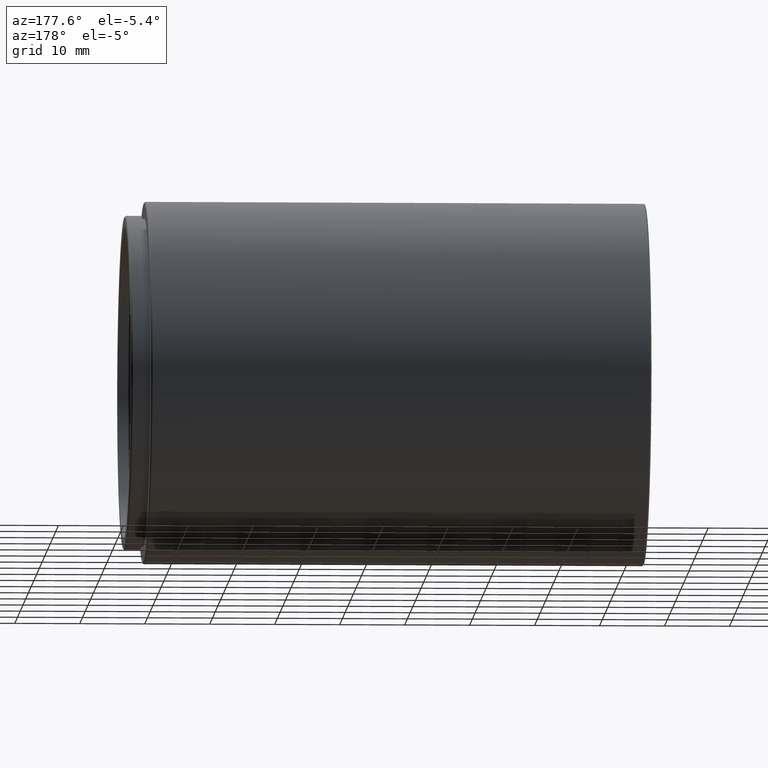
[diagram: clean part render]
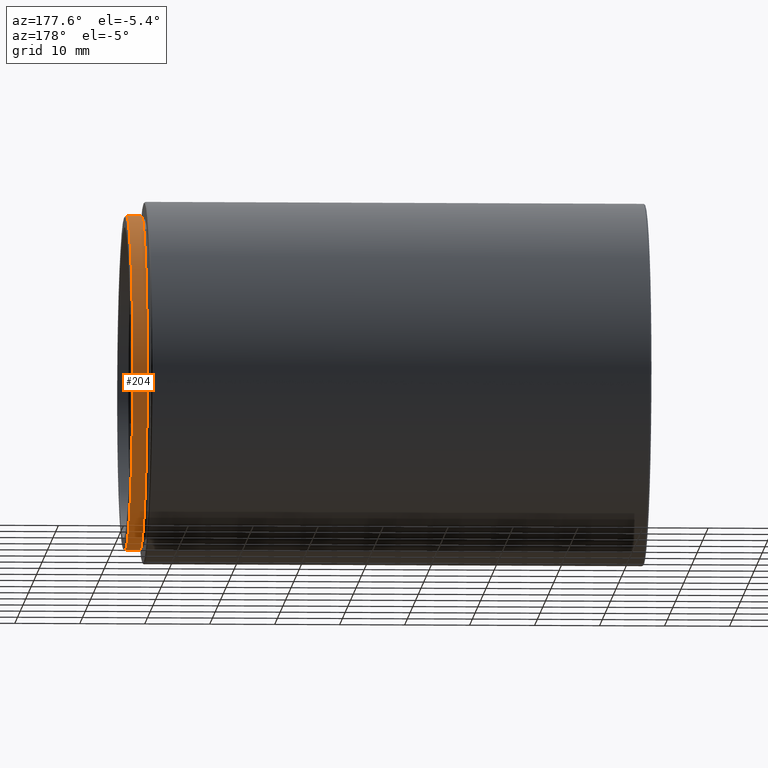
[diagram: same view with one face highlighted and labeled with its STEP entity id]
A machine part, auxiliary view. The second image highlights one B-rep face of the part: STEP entity #204.
In plain terms, the highlighted cylindrical surface (partial cylindrical patch) has radius 25.8 mm, axis along (-1, -0, -0).
Its self-contained STEP definition (entity closure, byte-faithful):
#4 = EDGE_CURVE ( 'NONE', #1293, #1150, #952, .T. ) ;
#81 = LINE ( 'NONE', #1359, #231 ) ;
#99 = AXIS2_PLACEMENT_3D ( 'NONE', #1064, #1437, #811 ) ;
#121 = CARTESIAN_POINT ( 'NONE',  ( 4.025999999999982926, -20.10857142857141966, 25.80000000000000426 ) ) ;
#126 = FACE_OUTER_BOUND ( 'NONE', #736, .T. ) ;
#164 = ORIENTED_EDGE ( 'NONE', *, *, #1537, .T. ) ;
#204 = ADVANCED_FACE ( 'NONE', ( #126 ), #883, .T. ) ;
#215 = ORIENTED_EDGE ( 'NONE', *, *, #4, .T. ) ;
#231 = VECTOR ( 'NONE', #629, 1000.000000000000000 ) ;
#357 = VERTEX_POINT ( 'NONE', #812 ) ;
#401 = LINE ( 'NONE', #456, #1378 ) ;
#456 = CARTESIAN_POINT ( 'NONE',  ( 6.525999999999982926, -20.10857142857141611, -25.80000000000000426 ) ) ;
#457 = EDGE_CURVE ( 'NONE', #357, #934, #640, .T. ) ;
#527 = EDGE_CURVE ( 'NONE', #1293, #934, #81, .T. ) ;
#551 = DIRECTION ( 'NONE',  ( 0.000000000000000000, 0.000000000000000000, 1.000000000000000000 ) ) ;
#584 = DIRECTION ( 'NONE',  ( -1.000000000000000000, -0.000000000000000000, -0.000000000000000000 ) ) ;
#629 = DIRECTION ( 'NONE',  ( -1.000000000000000000, -0.000000000000000000, -0.000000000000000000 ) ) ;
#640 = CIRCLE ( 'NONE', #1488, 25.80000000000000426 ) ;
#736 = EDGE_LOOP ( 'NONE', ( #215, #164, #1098, #931 ) ) ;
#783 = DIRECTION ( 'NONE',  ( -1.000000000000000000, -0.000000000000000000, -0.000000000000000000 ) ) ;
#811 = DIRECTION ( 'NONE',  ( 0.000000000000000000, 0.000000000000000000, -1.000000000000000000 ) ) ;
#812 = CARTESIAN_POINT ( 'NONE',  ( 4.025999999999982926, -20.10857142857141611, -25.80000000000000426 ) ) ;
#837 = CARTESIAN_POINT ( 'NONE',  ( 6.276000000000017565, -20.10857142857141611, -25.80000000000000426 ) ) ;
#854 = DIRECTION ( 'NONE',  ( 0.000000000000000000, 0.000000000000000000, -1.000000000000000000 ) ) ;
#883 = CYLINDRICAL_SURFACE ( 'NONE', #1572, 25.80000000000000426 ) ;
#931 = ORIENTED_EDGE ( 'NONE', *, *, #527, .F. ) ;
#934 = VERTEX_POINT ( 'NONE', #121 ) ;
#952 = CIRCLE ( 'NONE', #99, 25.80000000000000426 ) ;
#958 = CARTESIAN_POINT ( 'NONE',  ( 6.276000000000017565, -20.10857142857141966, 25.80000000000000426 ) ) ;
#1064 = CARTESIAN_POINT ( 'NONE',  ( 6.276000000000017565, -20.10857142857141966, 0.000000000000000000 ) ) ;
#1084 = CARTESIAN_POINT ( 'NONE',  ( 4.025999999999982926, -20.10857142857141966, 0.000000000000000000 ) ) ;
#1098 = ORIENTED_EDGE ( 'NONE', *, *, #457, .T. ) ;
#1150 = VERTEX_POINT ( 'NONE', #837 ) ;
#1262 = CARTESIAN_POINT ( 'NONE',  ( 6.525999999999982926, -20.10857142857141966, 0.000000000000000000 ) ) ;
#1293 = VERTEX_POINT ( 'NONE', #958 ) ;
#1359 = CARTESIAN_POINT ( 'NONE',  ( 6.525999999999982926, -20.10857142857141966, 25.80000000000000426 ) ) ;
#1378 = VECTOR ( 'NONE', #584, 1000.000000000000000 ) ;
#1437 = DIRECTION ( 'NONE',  ( -1.000000000000000000, 0.000000000000000000, 0.000000000000000000 ) ) ;
#1488 = AXIS2_PLACEMENT_3D ( 'NONE', #1084, #1559, #854 ) ;
#1537 = EDGE_CURVE ( 'NONE', #1150, #357, #401, .T. ) ;
#1559 = DIRECTION ( 'NONE',  ( 1.000000000000000000, 0.000000000000000000, 0.000000000000000000 ) ) ;
#1572 = AXIS2_PLACEMENT_3D ( 'NONE', #1262, #783, #551 ) ;